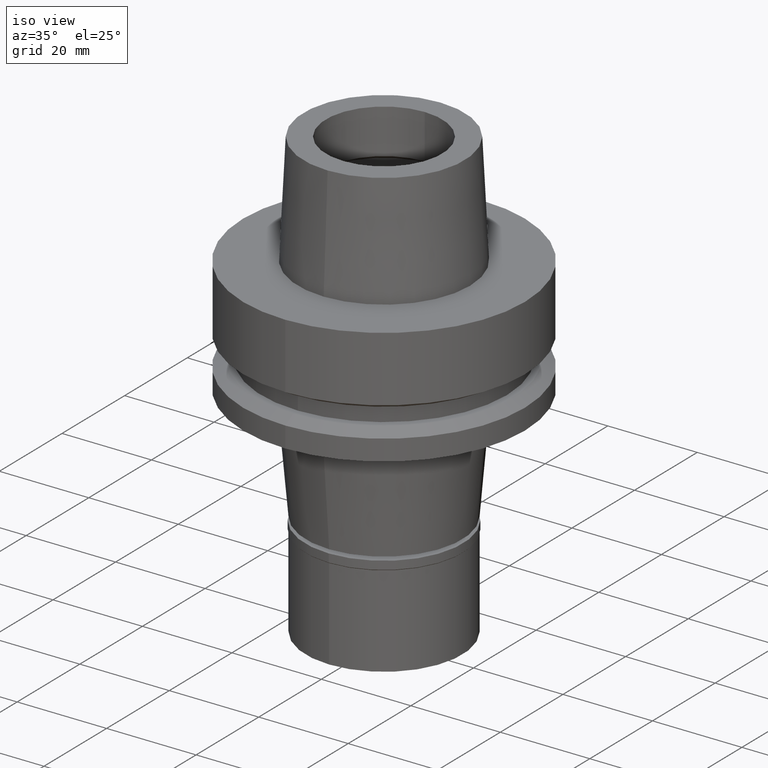
[diagram: clean part render]
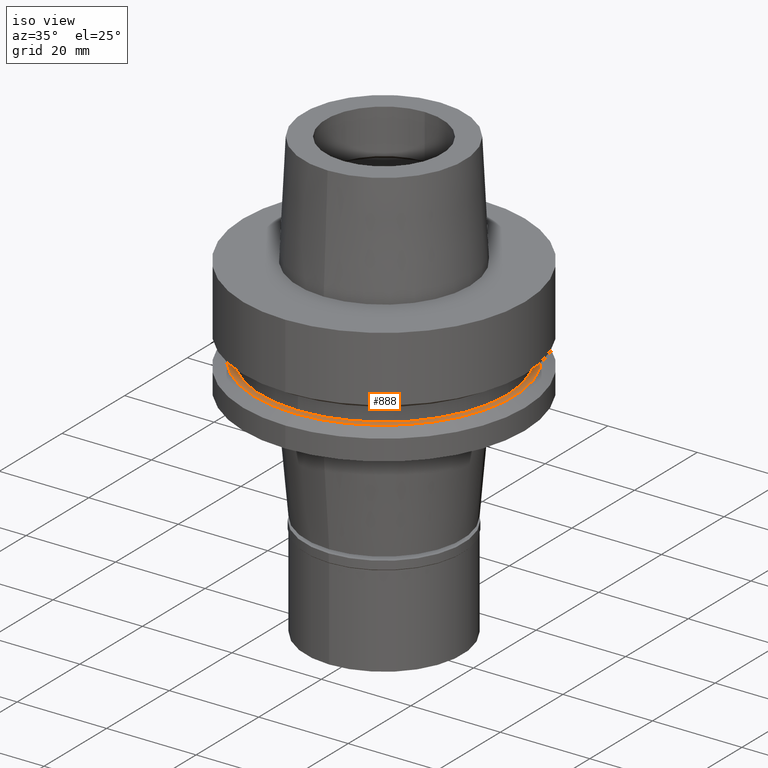
[diagram: same view with one face highlighted and labeled with its STEP entity id]
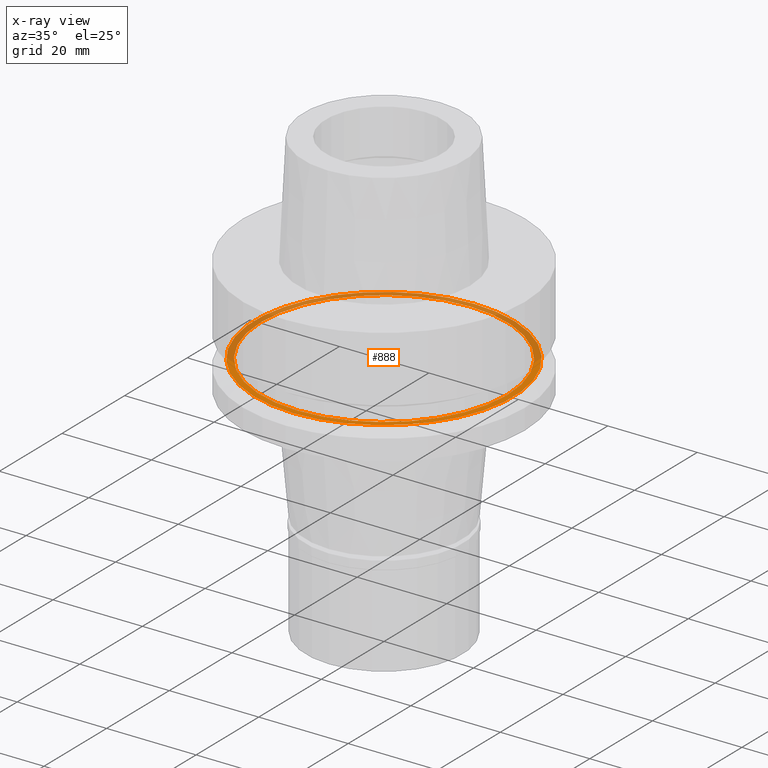
[diagram: x-ray of the same camera — body ghosted, the highlighted face saturated]
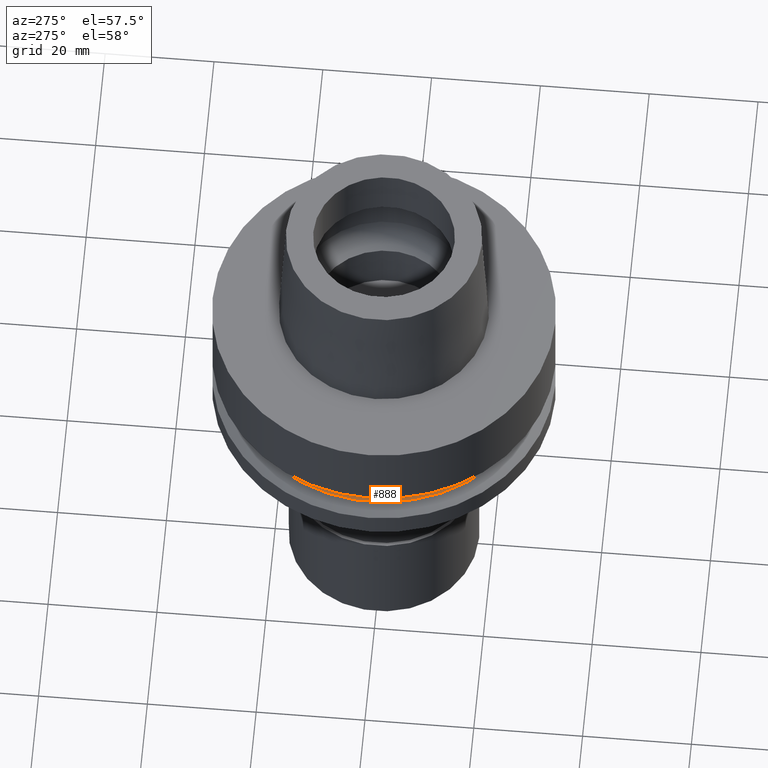
[diagram: same view with one face highlighted and labeled with its STEP entity id]
A machine part, iso view. The second image highlights one B-rep face of the part: STEP entity #888.
The next image is the same camera in x-ray: the body ghosted, the highlighted face saturated — about 51% of this face is hidden behind the body in this view.
A second angle (auxiliary view) of the same face is appended — the face is thin or edge-on in the first view.
In plain terms, the highlighted planar face has unit normal (0, 0, 1).
Its self-contained STEP definition (entity closure, byte-faithful):
#68 = CARTESIAN_POINT ( 'NONE',  ( 0.0000000000000000000, 0.0000000000000000000, -19.87500000000000000 ) ) ;
#70 = ORIENTED_EDGE ( 'NONE', *, *, #1672, .F. ) ;
#90 = AXIS2_PLACEMENT_3D ( 'NONE', #68, #2646, #2666 ) ;
#176 = CARTESIAN_POINT ( 'NONE',  ( 0.0000000000000000000, 0.0000000000000000000, -19.87500000000000000 ) ) ;
#227 = DIRECTION ( 'NONE',  ( 0.0000000000000000000, 0.0000000000000000000, -1.000000000000000000 ) ) ;
#247 = CARTESIAN_POINT ( 'NONE',  ( 0.0000000000000000000, -27.50000000000000000, -19.87500000000000000 ) ) ;
#390 = AXIS2_PLACEMENT_3D ( 'NONE', #1428, #2499, #2738 ) ;
#444 = VERTEX_POINT ( 'NONE', #2039 ) ;
#678 = DIRECTION ( 'NONE',  ( 0.0000000000000000000, 0.0000000000000000000, 1.000000000000000000 ) ) ;
#696 = CIRCLE ( 'NONE', #390, 27.50000000000000000 ) ;
#733 = ORIENTED_EDGE ( 'NONE', *, *, #1694, .F. ) ;
#737 = CIRCLE ( 'NONE', #90, 28.89759526419000224 ) ;
#875 = CARTESIAN_POINT ( 'NONE',  ( 0.0000000000000000000, 28.89759526419000224, -19.87500000000000000 ) ) ;
#888 = ADVANCED_FACE ( 'NONE', ( #921, #1367 ), #1790, .T. ) ;
#921 = FACE_OUTER_BOUND ( 'NONE', #1473, .T. ) ;
#1104 = CARTESIAN_POINT ( 'NONE',  ( 0.0000000000000000000, 27.50000000000000000, -19.87500000000000000 ) ) ;
#1214 = AXIS2_PLACEMENT_3D ( 'NONE', #1298, #227, #2394 ) ;
#1298 = CARTESIAN_POINT ( 'NONE',  ( 0.0000000000000000000, 0.0000000000000000000, -19.87500000000000000 ) ) ;
#1334 = EDGE_CURVE ( 'NONE', #2737, #444, #737, .T. ) ;
#1345 = CIRCLE ( 'NONE', #1214, 28.89759526419000224 ) ;
#1367 = FACE_BOUND ( 'NONE', #2248, .T. ) ;
#1397 = ORIENTED_EDGE ( 'NONE', *, *, #2017, .F. ) ;
#1428 = CARTESIAN_POINT ( 'NONE',  ( 0.0000000000000000000, 0.0000000000000000000, -19.87500000000000000 ) ) ;
#1473 = EDGE_LOOP ( 'NONE', ( #2123, #1397 ) ) ;
#1672 = EDGE_CURVE ( 'NONE', #2047, #2213, #2244, .T. ) ;
#1694 = EDGE_CURVE ( 'NONE', #2213, #2047, #696, .T. ) ;
#1790 = PLANE ( 'NONE',  #2627 ) ;
#2017 = EDGE_CURVE ( 'NONE', #444, #2737, #1345, .T. ) ;
#2039 = CARTESIAN_POINT ( 'NONE',  ( 0.0000000000000000000, -28.89759526419000224, -19.87500000000000000 ) ) ;
#2047 = VERTEX_POINT ( 'NONE', #1104 ) ;
#2050 = DIRECTION ( 'NONE',  ( 0.0000000000000000000, 0.0000000000000000000, 1.000000000000000000 ) ) ;
#2123 = ORIENTED_EDGE ( 'NONE', *, *, #1334, .F. ) ;
#2213 = VERTEX_POINT ( 'NONE', #247 ) ;
#2244 = CIRCLE ( 'NONE', #2663, 27.50000000000000000 ) ;
#2248 = EDGE_LOOP ( 'NONE', ( #70, #733 ) ) ;
#2281 = DIRECTION ( 'NONE',  ( 0.0000000000000000000, 1.000000000000000000, 0.0000000000000000000 ) ) ;
#2394 = DIRECTION ( 'NONE',  ( 0.0000000000000000000, -1.000000000000000000, 0.0000000000000000000 ) ) ;
#2432 = CARTESIAN_POINT ( 'NONE',  ( 0.0000000000000000000, 0.0000000000000000000, -19.87500000000000000 ) ) ;
#2499 = DIRECTION ( 'NONE',  ( 0.0000000000000000000, 0.0000000000000000000, 1.000000000000000000 ) ) ;
#2627 = AXIS2_PLACEMENT_3D ( 'NONE', #2432, #678, #2654 ) ;
#2646 = DIRECTION ( 'NONE',  ( 0.0000000000000000000, 0.0000000000000000000, -1.000000000000000000 ) ) ;
#2654 = DIRECTION ( 'NONE',  ( 1.000000000000000000, 0.0000000000000000000, 0.0000000000000000000 ) ) ;
#2663 = AXIS2_PLACEMENT_3D ( 'NONE', #176, #2050, #2281 ) ;
#2666 = DIRECTION ( 'NONE',  ( 0.0000000000000000000, 1.000000000000000000, 0.0000000000000000000 ) ) ;
#2737 = VERTEX_POINT ( 'NONE', #875 ) ;
#2738 = DIRECTION ( 'NONE',  ( 0.0000000000000000000, -1.000000000000000000, 0.0000000000000000000 ) ) ;